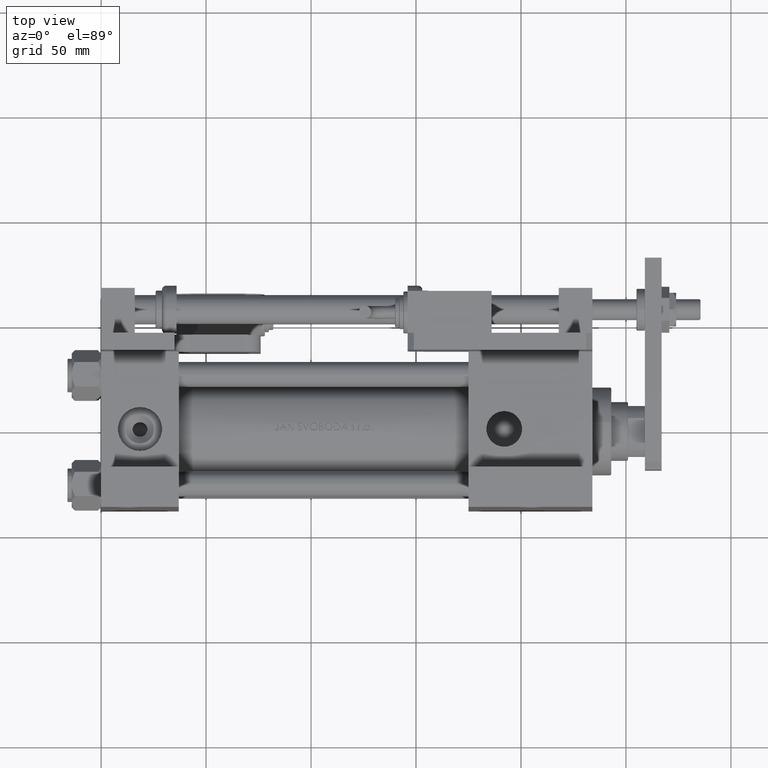
[diagram: clean part render]
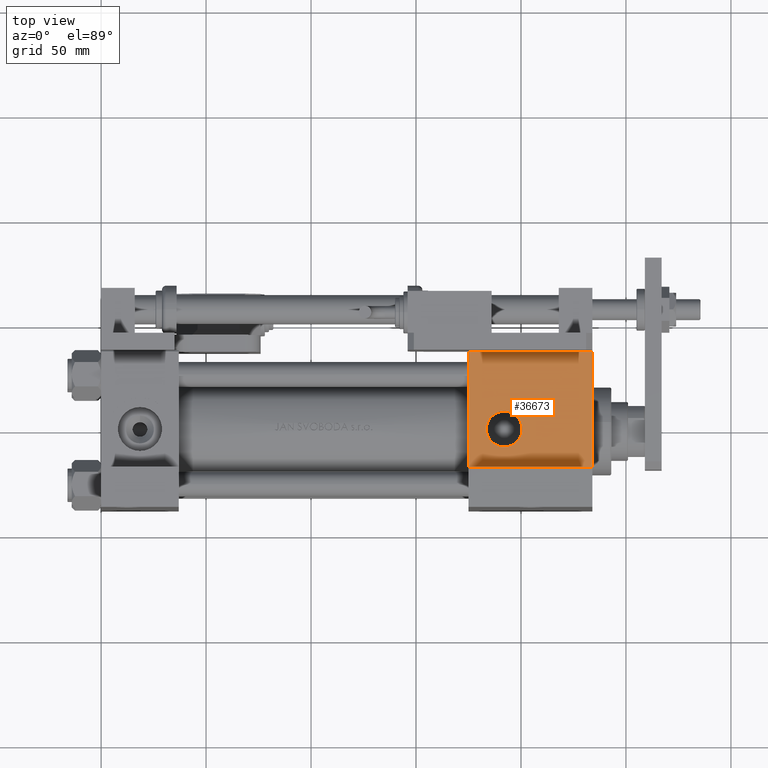
[diagram: same view with one face highlighted and labeled with its STEP entity id]
A machine part, top view. The second image highlights one B-rep face of the part: STEP entity #36673.
In plain terms, the highlighted planar face has unit normal (0, -0, -1).
Its self-contained STEP definition (entity closure, byte-faithful):
#428 = VECTOR ( 'NONE', #1577, 1000.000000000000000 ) ;
#1165 = ORIENTED_EDGE ( 'NONE', *, *, #27975, .T. ) ;
#1577 = DIRECTION ( 'NONE',  ( -1.000000000000000000, 0.000000000000000000, 0.000000000000000000 ) ) ;
#4386 = EDGE_CURVE ( 'NONE', #13795, #42921, #17969, .T. ) ;
#4938 = DIRECTION ( 'NONE',  ( 0.000000000000000000, -9.251858538542972814E-17, -1.000000000000000000 ) ) ;
#5701 = CIRCLE ( 'NONE', #46975, 8.500000000000010658 ) ;
#6124 = ORIENTED_EDGE ( 'NONE', *, *, #36352, .T. ) ;
#7347 = CARTESIAN_POINT ( 'NONE',  ( 192.0000000000000000, -37.50000000000000000, 3.469446951953615767E-15 ) ) ;
#7685 = EDGE_CURVE ( 'NONE', #26083, #15457, #24247, .T. ) ;
#8508 = AXIS2_PLACEMENT_3D ( 'NONE', #7347, #27321, #51536 ) ;
#9691 = LINE ( 'NONE', #26682, #428 ) ;
#9895 = DIRECTION ( 'NONE',  ( 0.000000000000000000, -1.000000000000000000, -8.673617379884036705E-17 ) ) ;
#10418 = CARTESIAN_POINT ( 'NONE',  ( 234.0000000000000000, -37.50000000000000711, -18.50000000000000355 ) ) ;
#10728 = ORIENTED_EDGE ( 'NONE', *, *, #33030, .F. ) ;
#12532 = AXIS2_PLACEMENT_3D ( 'NONE', #34130, #43562, #38182 ) ;
#13358 = CARTESIAN_POINT ( 'NONE',  ( 234.0000000000000000, -37.50000000000000000, 37.00000000000000711 ) ) ;
#13366 = CARTESIAN_POINT ( 'NONE',  ( 175.0000000000000284, -37.50000000000000000, 37.00000000000000711 ) ) ;
#13795 = VERTEX_POINT ( 'NONE', #15648 ) ;
#15457 = VERTEX_POINT ( 'NONE', #10418 ) ;
#15648 = CARTESIAN_POINT ( 'NONE',  ( 192.0000000000000000, -37.50000000000000000, 8.500000000000014211 ) ) ;
#17354 = CARTESIAN_POINT ( 'NONE',  ( 234.0000000000000000, -37.50000000000000000, 37.49999999999997868 ) ) ;
#17969 = CIRCLE ( 'NONE', #8508, 8.500000000000010658 ) ;
#17997 = PLANE ( 'NONE',  #12532 ) ;
#18255 = FACE_BOUND ( 'NONE', #18690, .T. ) ;
#18417 = LINE ( 'NONE', #17354, #18429 ) ;
#18429 = VECTOR ( 'NONE', #4938, 1000.000000000000000 ) ;
#18690 = EDGE_LOOP ( 'NONE', ( #46226, #47566 ) ) ;
#19788 = ORIENTED_EDGE ( 'NONE', *, *, #7685, .T. ) ;
#19791 = CARTESIAN_POINT ( 'NONE',  ( 175.0000000000000284, -37.50000000000000000, -18.50000000000000000 ) ) ;
#20109 = VERTEX_POINT ( 'NONE', #13358 ) ;
#20837 = VERTEX_POINT ( 'NONE', #13366 ) ;
#23113 = CARTESIAN_POINT ( 'NONE',  ( 192.0000000000000000, -37.50000000000000000, 3.469446951953615767E-15 ) ) ;
#24247 = LINE ( 'NONE', #44166, #33414 ) ;
#26083 = VERTEX_POINT ( 'NONE', #19791 ) ;
#26682 = CARTESIAN_POINT ( 'NONE',  ( 234.0000000000000000, -37.50000000000000000, 37.00000000000000711 ) ) ;
#27321 = DIRECTION ( 'NONE',  ( 0.000000000000000000, -1.000000000000000000, -8.673617379884036705E-17 ) ) ;
#27975 = EDGE_CURVE ( 'NONE', #20837, #26083, #35811, .T. ) ;
#31176 = FACE_OUTER_BOUND ( 'NONE', #41009, .T. ) ;
#31184 = DIRECTION ( 'NONE',  ( 0.000000000000000000, 0.000000000000000000, -1.000000000000000000 ) ) ;
#33030 = EDGE_CURVE ( 'NONE', #20109, #15457, #18417, .T. ) ;
#33414 = VECTOR ( 'NONE', #48997, 1000.000000000000000 ) ;
#34130 = CARTESIAN_POINT ( 'NONE',  ( 234.0000000000000000, -37.50000000000000000, 37.49999999999997868 ) ) ;
#35811 = LINE ( 'NONE', #44164, #39847 ) ;
#36352 = EDGE_CURVE ( 'NONE', #20109, #20837, #9691, .T. ) ;
#36673 = ADVANCED_FACE ( 'NONE', ( #18255, #31176 ), #17997, .F. ) ;
#37864 = EDGE_CURVE ( 'NONE', #42921, #13795, #5701, .T. ) ;
#38182 = DIRECTION ( 'NONE',  ( 0.000000000000000000, 9.251858538542972814E-17, 1.000000000000000000 ) ) ;
#39052 = DIRECTION ( 'NONE',  ( 0.000000000000000000, -9.251858538542972814E-17, -1.000000000000000000 ) ) ;
#39847 = VECTOR ( 'NONE', #39052, 1000.000000000000000 ) ;
#41009 = EDGE_LOOP ( 'NONE', ( #10728, #6124, #1165, #19788 ) ) ;
#42921 = VERTEX_POINT ( 'NONE', #46440 ) ;
#43562 = DIRECTION ( 'NONE',  ( 0.000000000000000000, 1.000000000000000000, -9.251858538542972814E-17 ) ) ;
#44164 = CARTESIAN_POINT ( 'NONE',  ( 175.0000000000000284, -37.50000000000000000, 37.49999999999997868 ) ) ;
#44166 = CARTESIAN_POINT ( 'NONE',  ( 175.0000000000000284, -37.50000000000000000, -18.50000000000000000 ) ) ;
#46226 = ORIENTED_EDGE ( 'NONE', *, *, #37864, .F. ) ;
#46440 = CARTESIAN_POINT ( 'NONE',  ( 192.0000000000000000, -37.50000000000000000, -8.500000000000007105 ) ) ;
#46975 = AXIS2_PLACEMENT_3D ( 'NONE', #23113, #9895, #31184 ) ;
#47566 = ORIENTED_EDGE ( 'NONE', *, *, #4386, .F. ) ;
#48997 = DIRECTION ( 'NONE',  ( 1.000000000000000000, -1.176083712526648949E-16, 0.000000000000000000 ) ) ;
#51536 = DIRECTION ( 'NONE',  ( 0.000000000000000000, 0.000000000000000000, -1.000000000000000000 ) ) ;